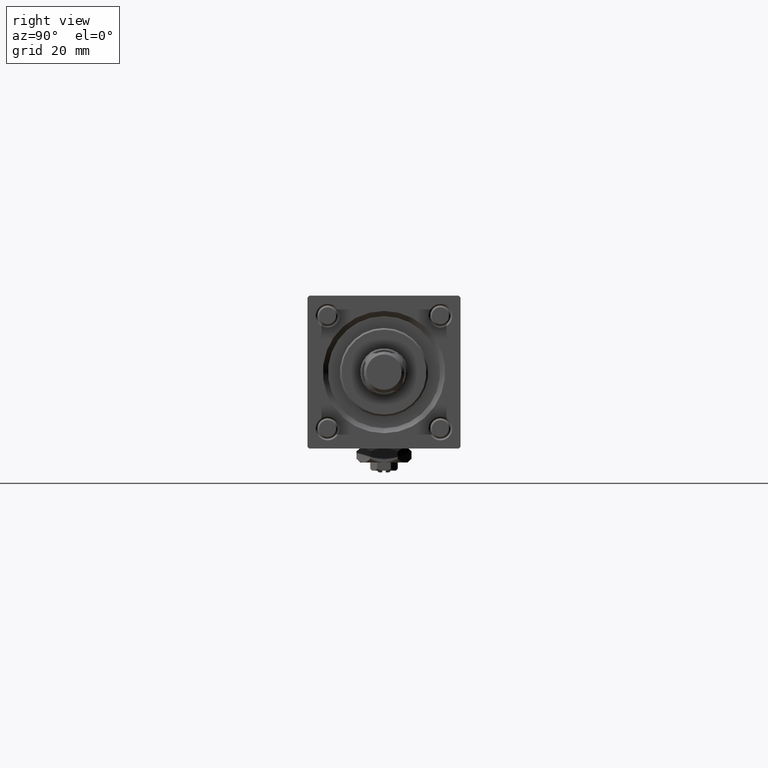
[diagram: clean part render]
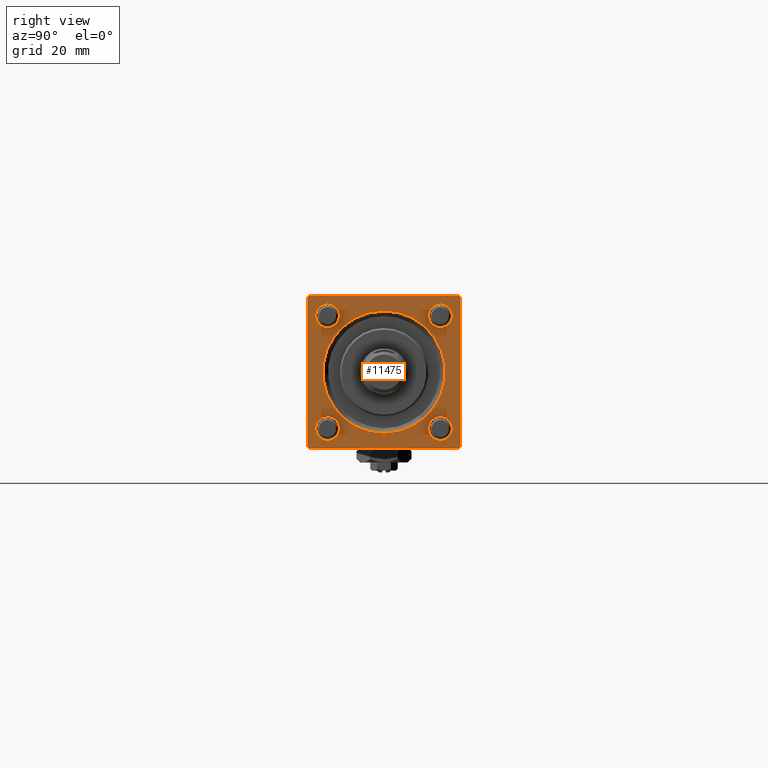
[diagram: same view with one face highlighted and labeled with its STEP entity id]
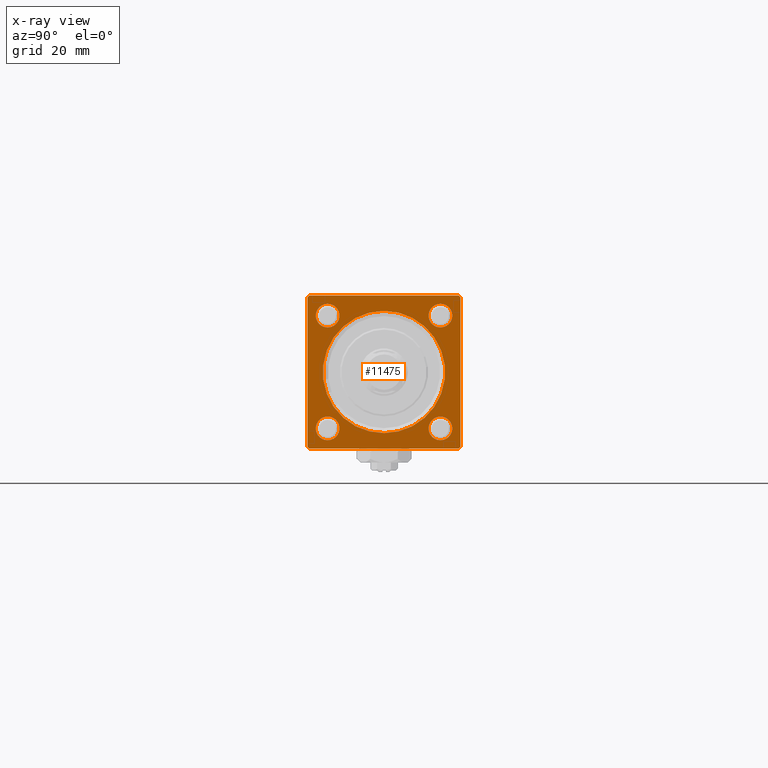
[diagram: x-ray of the same camera — body ghosted, the highlighted face saturated]
A machine part, right view. The second image highlights one B-rep face of the part: STEP entity #11475.
The next image is the same camera in x-ray: the body ghosted, the highlighted face saturated — about 0% of this face is hidden behind the body in this view.
In plain terms, the highlighted planar face has unit normal (-1, 0, 0).
Its self-contained STEP definition (entity closure, byte-faithful):
#155 = DIRECTION ( 'NONE',  ( 0.000000000000000000, 0.000000000000000000, 1.000000000000000000 ) ) ;
#331 = EDGE_CURVE ( 'NONE', #31600, #39820, #55548, .T. ) ;
#481 = CARTESIAN_POINT ( 'NONE',  ( 153.0000000000000284, 22.00000000000000355, 22.50000000000000355 ) ) ;
#751 = DIRECTION ( 'NONE',  ( -1.000000000000000000, 0.000000000000000000, -0.000000000000000000 ) ) ;
#1130 = CARTESIAN_POINT ( 'NONE',  ( 153.0000000000000284, -21.99999999999999645, -22.50000000000000000 ) ) ;
#1136 = CARTESIAN_POINT ( 'NONE',  ( 153.0000000000000284, -16.59999999999999076, -16.60000000000000853 ) ) ;
#2337 = AXIS2_PLACEMENT_3D ( 'NONE', #23321, #28684, #14362 ) ;
#2701 = ORIENTED_EDGE ( 'NONE', *, *, #54571, .T. ) ;
#2807 = DIRECTION ( 'NONE',  ( -0.000000000000000000, 0.000000000000000000, 1.000000000000000000 ) ) ;
#3034 = LINE ( 'NONE', #56770, #28784 ) ;
#4044 = EDGE_CURVE ( 'NONE', #55648, #48266, #32529, .T. ) ;
#4392 = CARTESIAN_POINT ( 'NONE',  ( 153.0000000000000284, 16.59999999999999787, -13.10000000000002807 ) ) ;
#4461 = ORIENTED_EDGE ( 'NONE', *, *, #23147, .T. ) ;
#4581 = CIRCLE ( 'NONE', #5540, 3.499999999999975131 ) ;
#4807 = DIRECTION ( 'NONE',  ( -0.000000000000000000, -0.7071067811865378028, -0.7071067811865573427 ) ) ;
#5540 = AXIS2_PLACEMENT_3D ( 'NONE', #9521, #54290, #49814 ) ;
#5584 = VERTEX_POINT ( 'NONE', #4392 ) ;
#5594 = ORIENTED_EDGE ( 'NONE', *, *, #35553, .T. ) ;
#5610 = DIRECTION ( 'NONE',  ( -1.000000000000000000, 0.000000000000000000, -0.000000000000000000 ) ) ;
#5662 = DIRECTION ( 'NONE',  ( -1.000000000000000000, 0.000000000000000000, -0.000000000000000000 ) ) ;
#7213 = VERTEX_POINT ( 'NONE', #46677 ) ;
#7301 = PLANE ( 'NONE',  #56452 ) ;
#7493 = DIRECTION ( 'NONE',  ( 0.000000000000000000, 0.000000000000000000, 1.000000000000000000 ) ) ;
#7598 = VERTEX_POINT ( 'NONE', #13117 ) ;
#7808 = CARTESIAN_POINT ( 'NONE',  ( 153.0000000000000284, 0.000000000000000000, 0.000000000000000000 ) ) ;
#8123 = VERTEX_POINT ( 'NONE', #15052 ) ;
#8374 = CARTESIAN_POINT ( 'NONE',  ( 153.0000000000000284, -16.59999999999999076, 20.09999999999998721 ) ) ;
#8417 = VERTEX_POINT ( 'NONE', #29006 ) ;
#9521 = CARTESIAN_POINT ( 'NONE',  ( 153.0000000000000284, 16.59999999999999787, 16.60000000000000497 ) ) ;
#10759 = CARTESIAN_POINT ( 'NONE',  ( 153.0000000000000284, -22.49999999999999645, 21.99999999999999289 ) ) ;
#11475 = ADVANCED_FACE ( 'NONE', ( #38936, #57132, #11478, #34454, #29988, #48180 ), #7301, .F. ) ;
#11478 = FACE_BOUND ( 'NONE', #48365, .T. ) ;
#11660 = LINE ( 'NONE', #34638, #19910 ) ;
#11926 = ORIENTED_EDGE ( 'NONE', *, *, #331, .T. ) ;
#12115 = VECTOR ( 'NONE', #39700, 1000.000000000000000 ) ;
#12367 = VECTOR ( 'NONE', #4807, 1000.000000000000000 ) ;
#12487 = VECTOR ( 'NONE', #55846, 1000.000000000000000 ) ;
#12713 = EDGE_LOOP ( 'NONE', ( #43575, #33480 ) ) ;
#13117 = CARTESIAN_POINT ( 'NONE',  ( 153.0000000000000284, 22.50000000000000355, 22.00000000000000355 ) ) ;
#13754 = VECTOR ( 'NONE', #19330, 999.9999999999998863 ) ;
#14362 = DIRECTION ( 'NONE',  ( 0.000000000000000000, 0.000000000000000000, 1.000000000000000000 ) ) ;
#14449 = ORIENTED_EDGE ( 'NONE', *, *, #21962, .T. ) ;
#14871 = DIRECTION ( 'NONE',  ( -1.000000000000000000, 0.000000000000000000, -0.000000000000000000 ) ) ;
#15052 = CARTESIAN_POINT ( 'NONE',  ( 153.0000000000000284, 22.00000000000000355, 22.50000000000000355 ) ) ;
#15429 = CIRCLE ( 'NONE', #23053, 3.499999999999975131 ) ;
#15859 = DIRECTION ( 'NONE',  ( -1.000000000000000000, 0.000000000000000000, -0.000000000000000000 ) ) ;
#16043 = VERTEX_POINT ( 'NONE', #32682 ) ;
#16321 = LINE ( 'NONE', #47962, #18519 ) ;
#17305 = ORIENTED_EDGE ( 'NONE', *, *, #48500, .T. ) ;
#18245 = EDGE_CURVE ( 'NONE', #38471, #31193, #41461, .T. ) ;
#18519 = VECTOR ( 'NONE', #20503, 999.9999999999998863 ) ;
#18822 = VERTEX_POINT ( 'NONE', #33810 ) ;
#19015 = EDGE_CURVE ( 'NONE', #5584, #8417, #52877, .T. ) ;
#19330 = DIRECTION ( 'NONE',  ( 0.000000000000000000, 0.7071067811865425767, -0.7071067811865525687 ) ) ;
#19436 = ORIENTED_EDGE ( 'NONE', *, *, #44069, .F. ) ;
#19578 = ORIENTED_EDGE ( 'NONE', *, *, #41235, .T. ) ;
#19910 = VECTOR ( 'NONE', #43302, 1000.000000000000000 ) ;
#19941 = AXIS2_PLACEMENT_3D ( 'NONE', #54471, #751, #155 ) ;
#20503 = DIRECTION ( 'NONE',  ( -0.000000000000000000, 0.7071067811865376918, 0.7071067811865574537 ) ) ;
#21741 = CIRCLE ( 'NONE', #23679, 3.500000000000016875 ) ;
#21962 = EDGE_CURVE ( 'NONE', #7213, #51633, #42631, .T. ) ;
#21982 = CARTESIAN_POINT ( 'NONE',  ( 153.0000000000000284, 16.59999999999999787, 20.09999999999998010 ) ) ;
#22851 = CIRCLE ( 'NONE', #35193, 3.499999999999975131 ) ;
#23053 = AXIS2_PLACEMENT_3D ( 'NONE', #23222, #5610, #45286 ) ;
#23147 = EDGE_CURVE ( 'NONE', #48266, #55648, #4581, .T. ) ;
#23222 = CARTESIAN_POINT ( 'NONE',  ( 153.0000000000000284, -16.59999999999999076, 16.60000000000000853 ) ) ;
#23321 = CARTESIAN_POINT ( 'NONE',  ( 153.0000000000000284, 16.59999999999999787, -16.60000000000000497 ) ) ;
#23679 = AXIS2_PLACEMENT_3D ( 'NONE', #1136, #14871, #51577 ) ;
#23866 = DIRECTION ( 'NONE',  ( 0.000000000000000000, 0.000000000000000000, 1.000000000000000000 ) ) ;
#24024 = EDGE_CURVE ( 'NONE', #39820, #56297, #44466, .T. ) ;
#24540 = AXIS2_PLACEMENT_3D ( 'NONE', #7808, #26025, #53458 ) ;
#24916 = CARTESIAN_POINT ( 'NONE',  ( 153.0000000000000284, -16.59999999999999076, -13.09999999999999076 ) ) ;
#25049 = CARTESIAN_POINT ( 'NONE',  ( 153.0000000000000284, -21.99999999999998224, -22.50000000000000000 ) ) ;
#25217 = ORIENTED_EDGE ( 'NONE', *, *, #37067, .T. ) ;
#25292 = LINE ( 'NONE', #1130, #13754 ) ;
#25510 = CARTESIAN_POINT ( 'NONE',  ( 153.0000000000000284, 0.000000000000000000, 0.000000000000000000 ) ) ;
#26025 = DIRECTION ( 'NONE',  ( -1.000000000000000000, 0.000000000000000000, -0.000000000000000000 ) ) ;
#26524 = CARTESIAN_POINT ( 'NONE',  ( 153.0000000000000284, -21.99999999999999645, 22.49999999999999289 ) ) ;
#26723 = EDGE_LOOP ( 'NONE', ( #14449, #25217 ) ) ;
#27013 = CARTESIAN_POINT ( 'NONE',  ( 153.0000000000000284, 2.204364238465235822E-15, 18.00000000000000355 ) ) ;
#27649 = LINE ( 'NONE', #481, #45451 ) ;
#27760 = AXIS2_PLACEMENT_3D ( 'NONE', #40711, #58894, #41311 ) ;
#27817 = LINE ( 'NONE', #57821, #12487 ) ;
#28578 = CIRCLE ( 'NONE', #19941, 18.00000000000000355 ) ;
#28684 = DIRECTION ( 'NONE',  ( -1.000000000000000000, 0.000000000000000000, -0.000000000000000000 ) ) ;
#28771 = ORIENTED_EDGE ( 'NONE', *, *, #28879, .T. ) ;
#28784 = VECTOR ( 'NONE', #57359, 1000.000000000000000 ) ;
#28879 = EDGE_CURVE ( 'NONE', #31193, #38471, #21741, .T. ) ;
#29006 = CARTESIAN_POINT ( 'NONE',  ( 153.0000000000000284, 16.59999999999999787, -20.09999999999998010 ) ) ;
#29329 = EDGE_CURVE ( 'NONE', #7598, #8123, #27649, .T. ) ;
#29630 = EDGE_LOOP ( 'NONE', ( #51800, #41293, #19436, #2701, #39534, #37813, #5594, #11926 ) ) ;
#29988 = FACE_BOUND ( 'NONE', #26723, .T. ) ;
#31193 = VERTEX_POINT ( 'NONE', #24916 ) ;
#31600 = VERTEX_POINT ( 'NONE', #26524 ) ;
#32519 = CARTESIAN_POINT ( 'NONE',  ( 153.0000000000000284, -16.59999999999999076, 16.60000000000000853 ) ) ;
#32529 = CIRCLE ( 'NONE', #27760, 3.499999999999975131 ) ;
#32682 = CARTESIAN_POINT ( 'NONE',  ( 153.0000000000000284, 21.99999999999998934, -22.49999999999999645 ) ) ;
#33048 = VERTEX_POINT ( 'NONE', #8374 ) ;
#33480 = ORIENTED_EDGE ( 'NONE', *, *, #19015, .T. ) ;
#33810 = CARTESIAN_POINT ( 'NONE',  ( 153.0000000000000284, -16.59999999999999076, 13.10000000000003162 ) ) ;
#33836 = AXIS2_PLACEMENT_3D ( 'NONE', #43048, #39742, #57937 ) ;
#34454 = FACE_BOUND ( 'NONE', #35035, .T. ) ;
#34638 = CARTESIAN_POINT ( 'NONE',  ( 153.0000000000000284, 22.50000000000000355, 22.50000000000000355 ) ) ;
#35035 = EDGE_LOOP ( 'NONE', ( #19578, #17305 ) ) ;
#35036 = CARTESIAN_POINT ( 'NONE',  ( 153.0000000000000284, -16.59999999999999076, -20.10000000000002274 ) ) ;
#35193 = AXIS2_PLACEMENT_3D ( 'NONE', #41925, #15859, #7493 ) ;
#35361 = AXIS2_PLACEMENT_3D ( 'NONE', #32519, #5662, #23866 ) ;
#35553 = EDGE_CURVE ( 'NONE', #8123, #31600, #11660, .T. ) ;
#35949 = VERTEX_POINT ( 'NONE', #25049 ) ;
#36413 = EDGE_CURVE ( 'NONE', #8417, #5584, #22851, .T. ) ;
#37067 = EDGE_CURVE ( 'NONE', #51633, #7213, #28578, .T. ) ;
#37813 = ORIENTED_EDGE ( 'NONE', *, *, #29329, .T. ) ;
#38471 = VERTEX_POINT ( 'NONE', #35036 ) ;
#38936 = FACE_BOUND ( 'NONE', #39567, .T. ) ;
#39534 = ORIENTED_EDGE ( 'NONE', *, *, #46033, .F. ) ;
#39567 = EDGE_LOOP ( 'NONE', ( #58407, #28771 ) ) ;
#39700 = DIRECTION ( 'NONE',  ( 0.000000000000000000, 0.000000000000000000, -1.000000000000000000 ) ) ;
#39742 = DIRECTION ( 'NONE',  ( -1.000000000000000000, 0.000000000000000000, -0.000000000000000000 ) ) ;
#39820 = VERTEX_POINT ( 'NONE', #10759 ) ;
#40130 = CIRCLE ( 'NONE', #35361, 3.499999999999975131 ) ;
#40711 = CARTESIAN_POINT ( 'NONE',  ( 153.0000000000000284, 16.59999999999999787, 16.60000000000000497 ) ) ;
#41062 = DIRECTION ( 'NONE',  ( 0.000000000000000000, -0.7071067811865474617, 0.7071067811865474617 ) ) ;
#41235 = EDGE_CURVE ( 'NONE', #18822, #33048, #40130, .T. ) ;
#41293 = ORIENTED_EDGE ( 'NONE', *, *, #54852, .T. ) ;
#41311 = DIRECTION ( 'NONE',  ( 0.000000000000000000, 0.000000000000000000, 1.000000000000000000 ) ) ;
#41461 = CIRCLE ( 'NONE', #33836, 3.500000000000016875 ) ;
#41925 = CARTESIAN_POINT ( 'NONE',  ( 153.0000000000000284, 16.59999999999999787, -16.60000000000000497 ) ) ;
#42631 = CIRCLE ( 'NONE', #24540, 18.00000000000000355 ) ;
#43048 = CARTESIAN_POINT ( 'NONE',  ( 153.0000000000000284, -16.59999999999999076, -16.60000000000000853 ) ) ;
#43250 = CARTESIAN_POINT ( 'NONE',  ( 153.0000000000000284, 16.59999999999999787, 13.10000000000002807 ) ) ;
#43302 = DIRECTION ( 'NONE',  ( 0.000000000000000000, -1.000000000000000000, -2.312964634635742957E-16 ) ) ;
#43575 = ORIENTED_EDGE ( 'NONE', *, *, #36413, .T. ) ;
#43700 = DIRECTION ( 'NONE',  ( -1.000000000000000000, 0.000000000000000000, -0.000000000000000000 ) ) ;
#44069 = EDGE_CURVE ( 'NONE', #16043, #35949, #3034, .T. ) ;
#44466 = LINE ( 'NONE', #49529, #12115 ) ;
#45098 = CARTESIAN_POINT ( 'NONE',  ( 153.0000000000000284, -22.49999999999999645, -21.99999999999997868 ) ) ;
#45286 = DIRECTION ( 'NONE',  ( 0.000000000000000000, 0.000000000000000000, 1.000000000000000000 ) ) ;
#45451 = VECTOR ( 'NONE', #41062, 1000.000000000000114 ) ;
#45683 = CARTESIAN_POINT ( 'NONE',  ( 153.0000000000000284, -22.49999999999999645, 21.99999999999999289 ) ) ;
#46033 = EDGE_CURVE ( 'NONE', #7598, #54460, #27817, .T. ) ;
#46677 = CARTESIAN_POINT ( 'NONE',  ( 153.0000000000000284, 0.000000000000000000, -18.00000000000000355 ) ) ;
#47962 = CARTESIAN_POINT ( 'NONE',  ( 153.0000000000000284, 22.50000000000000355, -21.99999999999996803 ) ) ;
#48180 = FACE_OUTER_BOUND ( 'NONE', #29630, .T. ) ;
#48266 = VERTEX_POINT ( 'NONE', #43250 ) ;
#48365 = EDGE_LOOP ( 'NONE', ( #4461, #48818 ) ) ;
#48500 = EDGE_CURVE ( 'NONE', #33048, #18822, #15429, .T. ) ;
#48818 = ORIENTED_EDGE ( 'NONE', *, *, #4044, .T. ) ;
#49529 = CARTESIAN_POINT ( 'NONE',  ( 153.0000000000000284, -22.49999999999999645, 22.49999999999999289 ) ) ;
#49814 = DIRECTION ( 'NONE',  ( 0.000000000000000000, 0.000000000000000000, 1.000000000000000000 ) ) ;
#51577 = DIRECTION ( 'NONE',  ( 0.000000000000000000, 0.000000000000000000, 1.000000000000000000 ) ) ;
#51633 = VERTEX_POINT ( 'NONE', #27013 ) ;
#51800 = ORIENTED_EDGE ( 'NONE', *, *, #24024, .T. ) ;
#52877 = CIRCLE ( 'NONE', #2337, 3.499999999999975131 ) ;
#53458 = DIRECTION ( 'NONE',  ( 0.000000000000000000, 0.000000000000000000, 1.000000000000000000 ) ) ;
#54290 = DIRECTION ( 'NONE',  ( -1.000000000000000000, 0.000000000000000000, -0.000000000000000000 ) ) ;
#54460 = VERTEX_POINT ( 'NONE', #58470 ) ;
#54471 = CARTESIAN_POINT ( 'NONE',  ( 153.0000000000000284, 0.000000000000000000, 0.000000000000000000 ) ) ;
#54571 = EDGE_CURVE ( 'NONE', #16043, #54460, #16321, .T. ) ;
#54852 = EDGE_CURVE ( 'NONE', #56297, #35949, #25292, .T. ) ;
#55548 = LINE ( 'NONE', #45683, #12367 ) ;
#55648 = VERTEX_POINT ( 'NONE', #21982 ) ;
#55846 = DIRECTION ( 'NONE',  ( 0.000000000000000000, 0.000000000000000000, -1.000000000000000000 ) ) ;
#56297 = VERTEX_POINT ( 'NONE', #45098 ) ;
#56452 = AXIS2_PLACEMENT_3D ( 'NONE', #25510, #43700, #2807 ) ;
#56770 = CARTESIAN_POINT ( 'NONE',  ( 153.0000000000000284, 22.50000000000000355, -22.49999999999999645 ) ) ;
#57132 = FACE_BOUND ( 'NONE', #12713, .T. ) ;
#57359 = DIRECTION ( 'NONE',  ( 0.000000000000000000, -1.000000000000000000, -7.709882115452476934E-17 ) ) ;
#57821 = CARTESIAN_POINT ( 'NONE',  ( 153.0000000000000284, 22.50000000000000355, 22.50000000000000355 ) ) ;
#57937 = DIRECTION ( 'NONE',  ( 0.000000000000000000, 0.000000000000000000, 1.000000000000000000 ) ) ;
#58407 = ORIENTED_EDGE ( 'NONE', *, *, #18245, .T. ) ;
#58470 = CARTESIAN_POINT ( 'NONE',  ( 153.0000000000000284, 22.50000000000000355, -21.99999999999995381 ) ) ;
#58894 = DIRECTION ( 'NONE',  ( -1.000000000000000000, 0.000000000000000000, -0.000000000000000000 ) ) ;